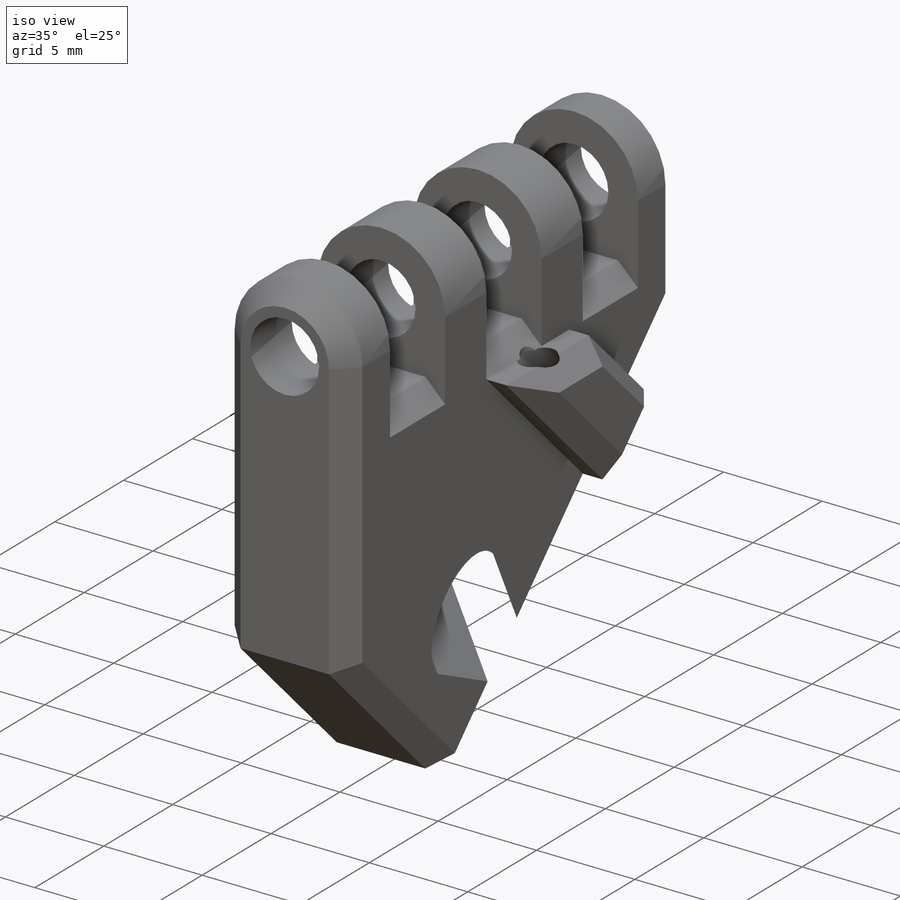
[diagram: iso view]
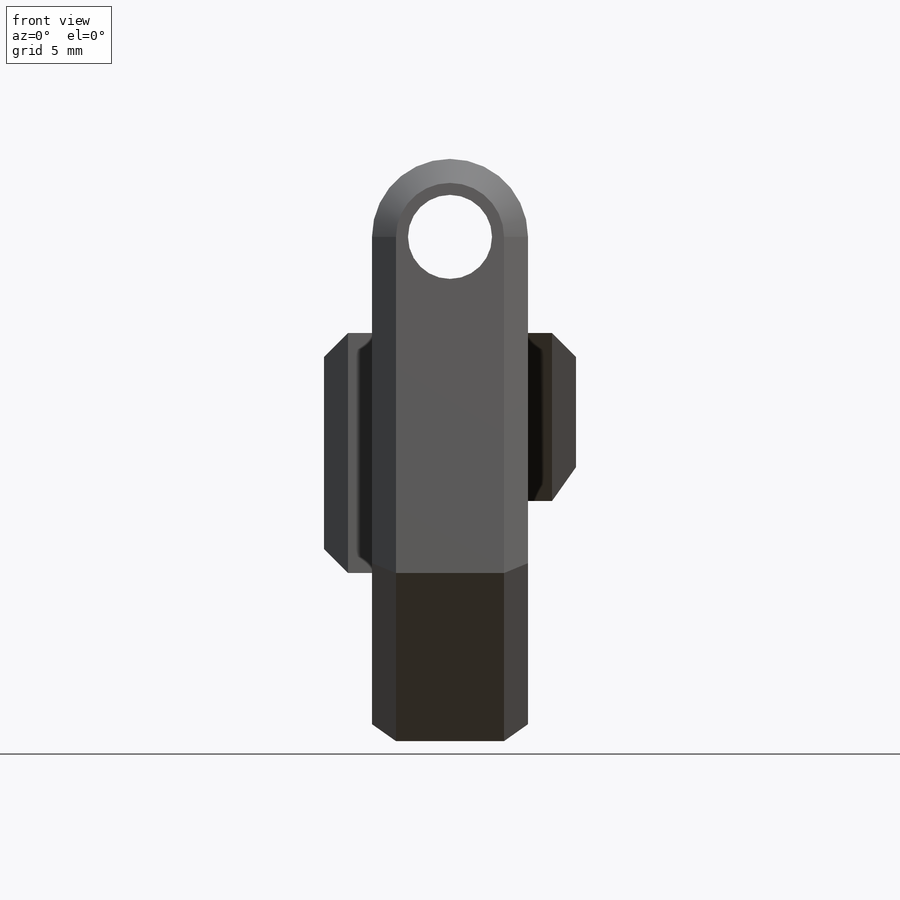
[diagram: front view]
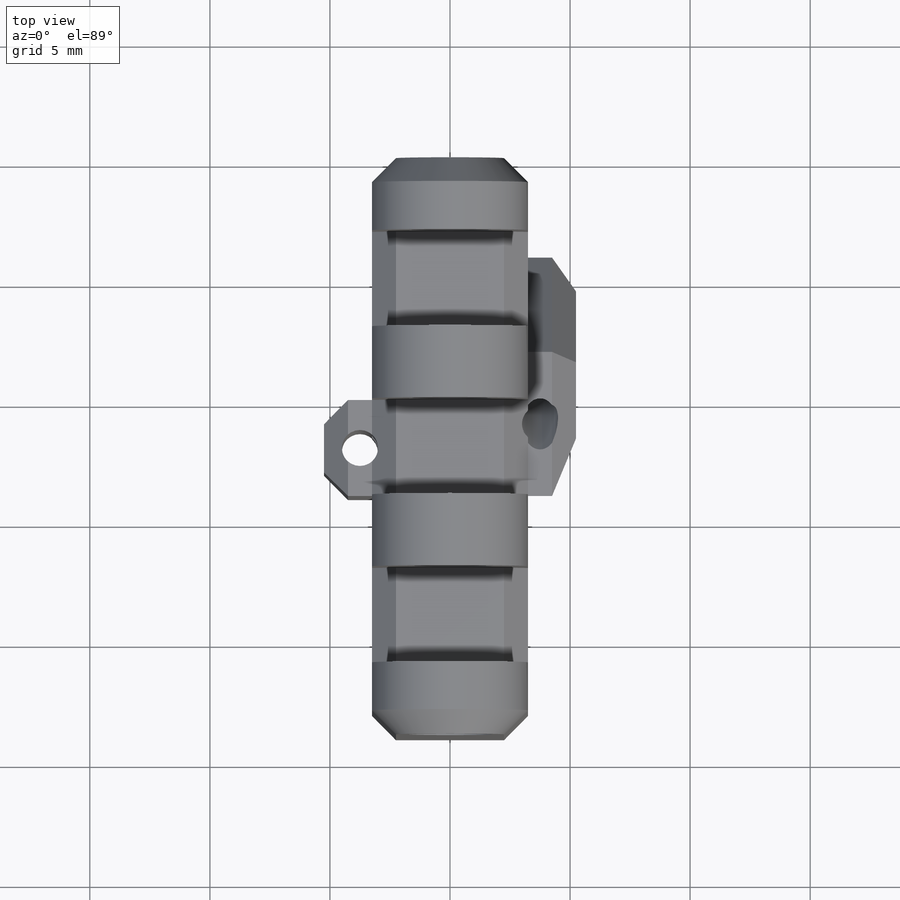
[diagram: top view]
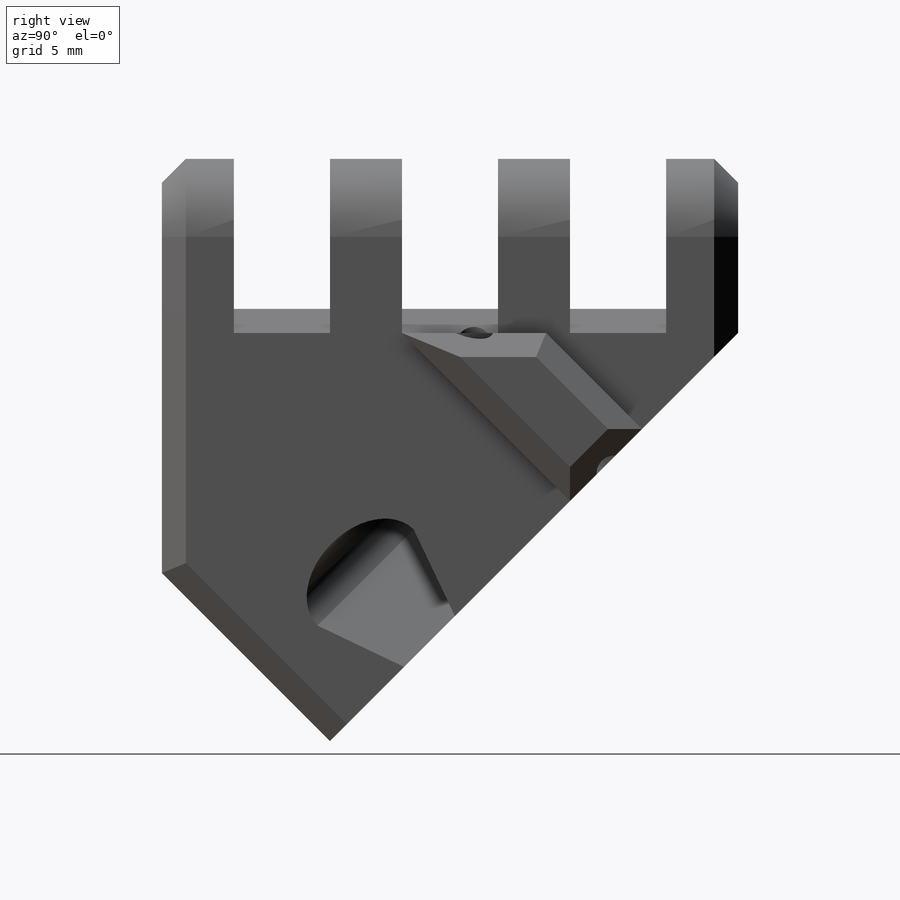
[diagram: right view]
SOLIDWORKS PART (.sldprt)
format: sldprt  version: not decoded by parser v0  size: 415,744 bytes
history: native  units: mm
features: sketch x11, cut_extrude x8, chamfer x4, extrude x3, material x1, plane x1 (+13 scaffold rows collapsed)
feature tree (41):
  scaffold x13  (default folders/planes/origin — collapsed)
  material  "Material <not specified>"
  sketch  "Sketch1"  dims[D1=6.5mm D2=28.0mm]
  extrude  "Boss-Extrude1"  Depth=24mm
  sketch  "Sketch2"  dims[D1=3.5mm]
  cut_extrude  "Cut-Extrude1"  [1 undecoded]
  sketch  "Sketch3"  dims[c1.D1=3.0mm c1.D2=3.0mm c1.D3=2.0mm c1.D4=3.0mm c1.D5=4.0mm c2.D3=4.0mm]
  cut_extrude  "Cut-Extrude2"  [1 undecoded]
  chamfer  "Chamfer1"  Distance=1mm Angle=45deg
  sketch  "Sketch7"  dims[D1=135.0deg]
  cut_extrude  "Cut-Extrude4"  [1 undecoded]
  sketch  "Sketch10"
  cut_extrude  "Cut-Extrude5"  [1 undecoded]
  chamfer  "Chamfer3"  Distance=1mm Angle=45deg
  plane  "Plane1"
  sketch  "Sketch18"  dims[D1=4.0mm D2=3.77mm D3=1.0mm D4=6.0mm]
  cut_extrude  "Cut-Extrude10"  Depth=13mm
  sketch  "Sketch11"  dims[D1=5.0mm]
  extrude  "Boss-Extrude3"  Depth=2mm
  chamfer  "Chamfer4"  Distance=1mm Angle=45deg
  sketch  "Sketch12"  dims[D1=1.5mm D2=1.5mm]
  cut_extrude  "Cut-Extrude6"  Depth=15mm
  sketch  "Sketch14"  dims[D1=6.0mm D2=4.0mm]
  extrude  "Boss-Extrude6"  Depth=2mm
  chamfer  "Chamfer6"  Distance=1mm Angle=45deg
  sketch  "Sketch19"  dims[D1=1.5mm D2=1.5mm]
  cut_extrude  "Cut-Extrude11"  [1 undecoded]
  sketch  "Sketch20"  dims[D1=1.5mm]
  cut_extrude  "Cut-Extrude12"  Depth=1mm
decode coverage: 20 of 26 modeling features carry decoded parameters
note: 5 parameter values undecoded
summary: no parameter record found for 5 features
note: suppression state not decoded; provenance and decode notes live in map.json
